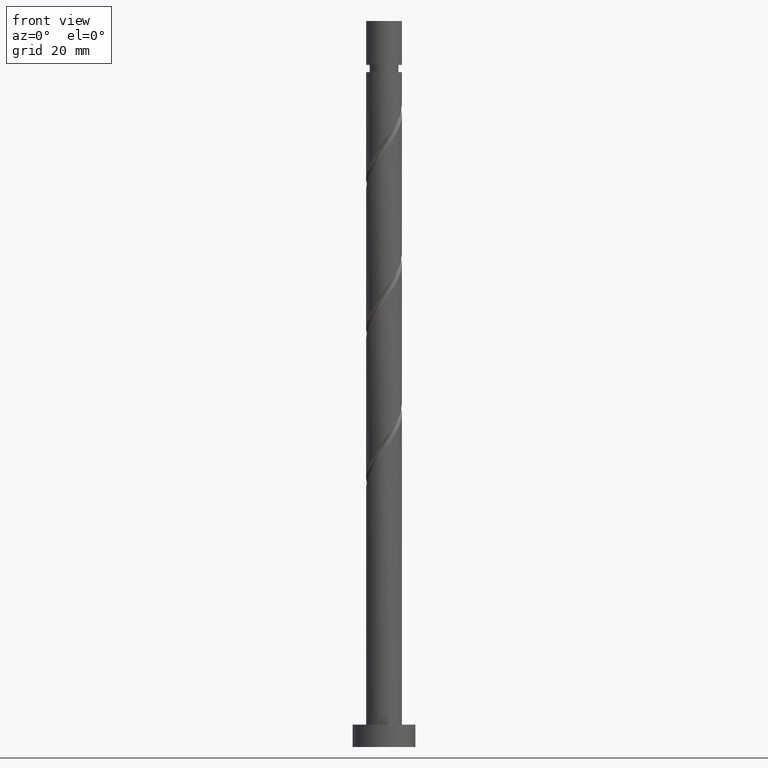
[diagram: clean part render]
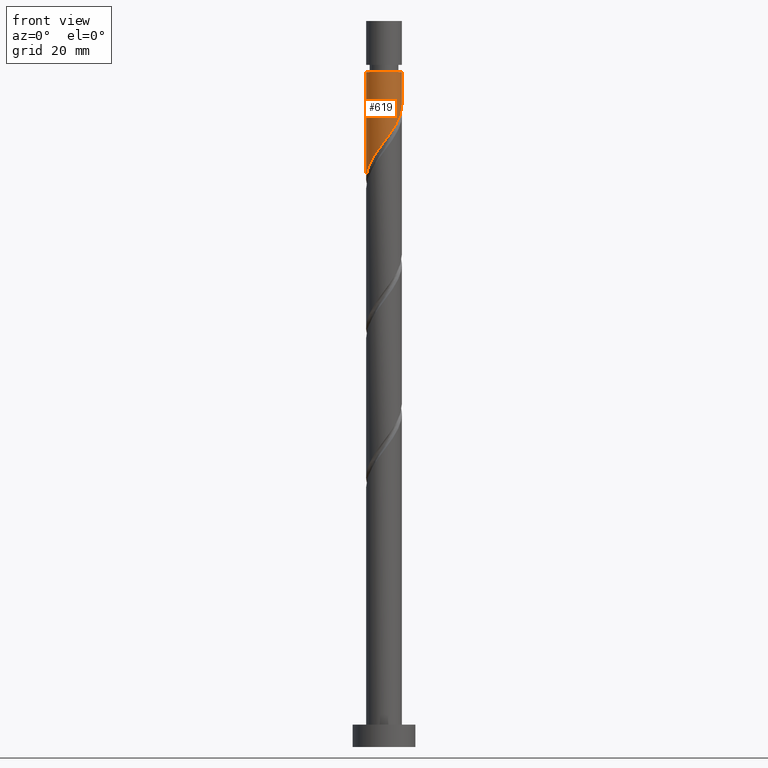
[diagram: same view with one face highlighted and labeled with its STEP entity id]
A machine part, front view. The second image highlights one B-rep face of the part: STEP entity #619.
In plain terms, the highlighted cylindrical surface (edge-blend (fillet) strip) has radius 4 mm, axis along (-0, -0, -1).
Its self-contained STEP definition (entity closure, byte-faithful):
#25 = DIRECTION ( 'NONE',  ( -0.000000000000000000, -0.000000000000000000, -1.000000000000000000 ) ) ;
#42 = EDGE_CURVE ( 'NONE', #810, #529, #209, .T. ) ;
#44 = DIRECTION ( 'NONE',  ( -0.000000000000000000, -0.000000000000000000, -1.000000000000000000 ) ) ;
#64 = CARTESIAN_POINT ( 'NONE',  ( 0.000000000000000000, 0.000000000000000000, 150.5992450301532131 ) ) ;
#71 = CARTESIAN_POINT ( 'NONE',  ( -3.960099130553265123, -0.7713189730113386711, 127.6825783634865417 ) ) ;
#81 = CARTESIAN_POINT ( 'NONE',  ( -4.000000000000000888, -2.751496337626119246E-15, 126.6628116853632804 ) ) ;
#125 = ORIENTED_EDGE ( 'NONE', *, *, #507, .T. ) ;
#177 = CARTESIAN_POINT ( 'NONE',  ( -1.312067740227890189, -3.815205935069465149, 133.2381339190420988 ) ) ;
#201 = CARTESIAN_POINT ( 'NONE',  ( -2.254808073111004063, -3.345617825659326527, 131.8492450301532131 ) ) ;
#209 = CIRCLE ( 'NONE', #1198, 3.999999999999993339 ) ;
#212 = VERTEX_POINT ( 'NONE', #1355 ) ;
#215 = CARTESIAN_POINT ( 'NONE',  ( -3.792814557677647969, -1.270652482415435047, 128.3770228079309845 ) ) ;
#239 = CARTESIAN_POINT ( 'NONE',  ( -3.334708473430079145, -2.209008691072452901, 129.7659116968198418 ) ) ;
#272 = CARTESIAN_POINT ( 'NONE',  ( 0.000000000000000000, 0.000000000000000000, 162.0000000000000000 ) ) ;
#289 = FACE_OUTER_BOUND ( 'NONE', #663, .T. ) ;
#310 = CARTESIAN_POINT ( 'NONE',  ( 3.580411880364394062, -1.783437906669448125, 140.8770228079309845 ) ) ;
#319 = CARTESIAN_POINT ( 'NONE',  ( 3.919999999999999929, -0.7959899496852973488, 142.2659116968198703 ) ) ;
#339 = CARTESIAN_POINT ( 'NONE',  ( -3.999999999999993339, 0.000000000000000000, 150.5992450301532131 ) ) ;
#352 = VECTOR ( 'NONE', #25, 1000.000000000000000 ) ;
#418 = DIRECTION ( 'NONE',  ( -0.000000000000000000, -0.000000000000000000, -1.000000000000000000 ) ) ;
#432 = CARTESIAN_POINT ( 'NONE',  ( 2.209008691072451569, -3.334708473430080033, 138.0992450301531278 ) ) ;
#441 = CARTESIAN_POINT ( 'NONE',  ( 1.769985991819531312, -3.625529984802032590, 137.4048005857087276 ) ) ;
#468 = LINE ( 'NONE', #1009, #574 ) ;
#484 = CARTESIAN_POINT ( 'NONE',  ( -4.000000000000000000, -0.1229678066306972989, 126.8259753733914010 ) ) ;
#507 = EDGE_CURVE ( 'NONE', #529, #1022, #468, .T. ) ;
#529 = VERTEX_POINT ( 'NONE', #339 ) ;
#532 = EDGE_CURVE ( 'NONE', #810, #212, #879, .T. ) ;
#566 = CARTESIAN_POINT ( 'NONE',  ( -1.783437906669446571, -3.580411880364394506, 132.5436894745976417 ) ) ;
#574 = VECTOR ( 'NONE', #1542, 1000.000000000000000 ) ;
#578 = CARTESIAN_POINT ( 'NONE',  ( 2.648031390325375600, -3.043886962058125700, 138.7936894745976417 ) ) ;
#588 = ORIENTED_EDGE ( 'NONE', *, *, #42, .T. ) ;
#608 = ORIENTED_EDGE ( 'NONE', *, *, #1497, .F. ) ;
#619 = ADVANCED_FACE ( 'NONE', ( #289 ), #1225, .T. ) ;
#627 = CARTESIAN_POINT ( 'NONE',  ( -3.992446597741899694, -0.2457034069343168592, 126.9881339190420988 ) ) ;
#663 = EDGE_LOOP ( 'NONE', ( #1587, #588, #125, #608 ) ) ;
#711 = CARTESIAN_POINT ( 'NONE',  ( 3.345617825659325195, -2.254808073111004951, 140.1825783634865275 ) ) ;
#752 =( BOUNDED_CURVE ( )  B_SPLINE_CURVE ( 2, ( #1648, #971, #319, #860, #310, #711, #1506, #578, #432, #441, #1377, #979, #1515, #848, #1385, #177, #566, #201, #1573, #898, #239, #1566, #215, #71, #627, #484, #81 ),
 .UNSPECIFIED., .F., .F. ) 
 B_SPLINE_CURVE_WITH_KNOTS ( ( 3, 2, 2, 2, 2, 2, 2, 2, 2, 2, 2, 2, 2, 3 ),
 ( 0.3045317669814460726, 0.3125000000000000000, 0.3229166666666666852, 0.3333333333333333148, 0.3437500000000000000, 0.3541666666666666852, 0.3645833333333333148, 0.3750000000000000000, 0.3854166666666666852, 0.3958333333333333148, 0.4062500000000000000, 0.4166666666666666852, 0.4270833333333333148, 0.4295317669814461836 ),
 .UNSPECIFIED. ) 
 CURVE ( )  GEOMETRIC_REPRESENTATION_ITEM ( )  RATIONAL_B_SPLINE_CURVE ( ( 0.9062941362546370616, 0.9031415850403410328, 0.9090909090909164991, 0.9013135103398348669, 0.9090909090909164991, 0.9013135103398348669, 0.9090909090909164991, 0.9013135103398348669, 0.9090909090909164991, 0.9013135103398348669, 0.9090909090909164991, 0.9013135103398348669, 0.9090909090909164991, 0.9013135103398348669, 0.9090909090909164991, 0.9013135103398348669, 0.9090909090909164991, 0.9013135103398348669, 0.9090909090909164991, 0.9013135103398348669, 0.9090909090909164991, 0.9013135103398348669, 0.9090909090909164991, 0.9013135103398348669, 0.9090909090909164991, 0.9072628343904103332, 0.9062941362546370616 ) ) 
 REPRESENTATION_ITEM ( '' )  );
#806 = AXIS2_PLACEMENT_3D ( 'NONE', #272, #418, #1619 ) ;
#810 = VERTEX_POINT ( 'NONE', #983 ) ;
#848 = CARTESIAN_POINT ( 'NONE',  ( -0.2799121591427060629, -4.024794064930536486, 134.6270228079309845 ) ) ;
#860 = CARTESIAN_POINT ( 'NONE',  ( 3.815205935069464260, -1.312067740227891965, 141.5714672523754132 ) ) ;
#879 = LINE ( 'NONE', #1413, #352 ) ;
#898 = CARTESIAN_POINT ( 'NONE',  ( -3.043886962058125700, -2.648031390325376044, 130.4603561412642989 ) ) ;
#971 = CARTESIAN_POINT ( 'NONE',  ( 4.000000000000002665, -0.4020151261036764012, 142.7960519828407087 ) ) ;
#979 = CARTESIAN_POINT ( 'NONE',  ( 0.7713189730113375608, -3.960099130553265123, 136.0159116968198418 ) ) ;
#983 = CARTESIAN_POINT ( 'NONE',  ( 3.999999999999993339, 4.898587196589407898E-16, 150.5992450301532131 ) ) ;
#1009 = CARTESIAN_POINT ( 'NONE',  ( -4.000000000000000000, 0.000000000000000000, 162.0000000000000000 ) ) ;
#1022 = VERTEX_POINT ( 'NONE', #1660 ) ;
#1198 = AXIS2_PLACEMENT_3D ( 'NONE', #64, #44, #1666 ) ;
#1225 = CYLINDRICAL_SURFACE ( 'NONE', #806, 4.000000000000000000 ) ;
#1355 = CARTESIAN_POINT ( 'NONE',  ( 4.000000000000000888, 1.719685211016324430E-15, 143.3294783520299802 ) ) ;
#1377 = CARTESIAN_POINT ( 'NONE',  ( 1.270652482415434825, -3.792814557677647969, 136.7103561412642705 ) ) ;
#1385 = CARTESIAN_POINT ( 'NONE',  ( -0.7959899496852971268, -3.919999999999999929, 133.9325783634865559 ) ) ;
#1413 = CARTESIAN_POINT ( 'NONE',  ( 4.000000000000000000, 4.898587196589412829E-16, 162.0000000000000000 ) ) ;
#1497 = EDGE_CURVE ( 'NONE', #212, #1022, #752, .T. ) ;
#1506 = CARTESIAN_POINT ( 'NONE',  ( 2.996824607992349510, -2.649347517584565104, 139.4881339190420988 ) ) ;
#1515 = CARTESIAN_POINT ( 'NONE',  ( 0.2457034069343156657, -3.992446597741899694, 135.3214672523754132 ) ) ;
#1542 = DIRECTION ( 'NONE',  ( -0.000000000000000000, -0.000000000000000000, -1.000000000000000000 ) ) ;
#1566 = CARTESIAN_POINT ( 'NONE',  ( -3.625529984802032590, -1.769985991819531312, 129.0714672523754132 ) ) ;
#1573 = CARTESIAN_POINT ( 'NONE',  ( -2.649347517584564660, -2.996824607992349510, 131.1548005857087560 ) ) ;
#1587 = ORIENTED_EDGE ( 'NONE', *, *, #532, .F. ) ;
#1619 = DIRECTION ( 'NONE',  ( -1.000000000000000000, 0.000000000000000000, 0.000000000000000000 ) ) ;
#1648 = CARTESIAN_POINT ( 'NONE',  ( 4.000000000000000888, 1.719685211016324430E-15, 143.3294783520299518 ) ) ;
#1660 = CARTESIAN_POINT ( 'NONE',  ( -4.000000000000000888, -2.751496337626119246E-15, 126.6628116853632804 ) ) ;
#1666 = DIRECTION ( 'NONE',  ( -1.000000000000000000, 0.000000000000000000, 0.000000000000000000 ) ) ;